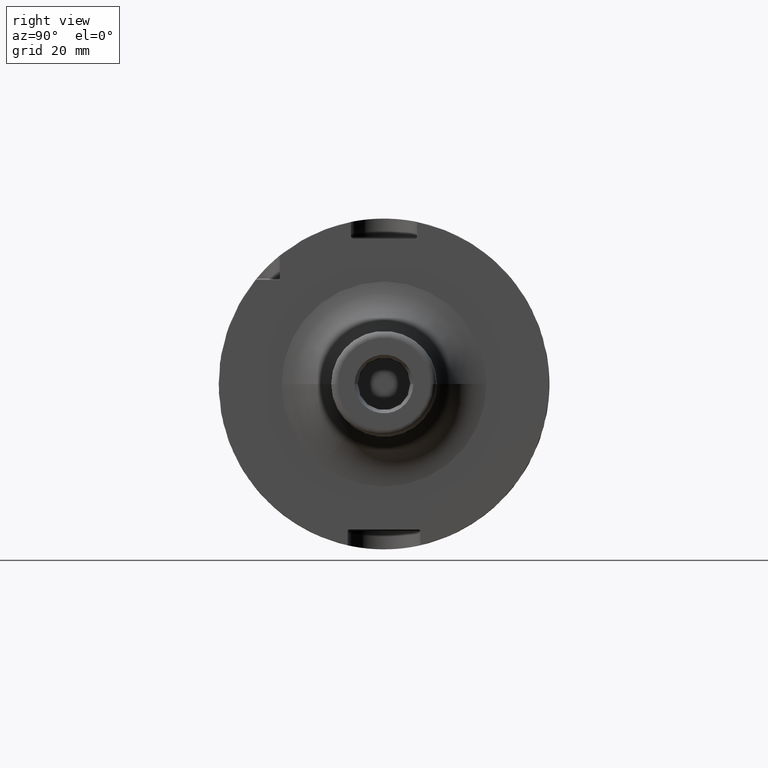
[diagram: clean part render]
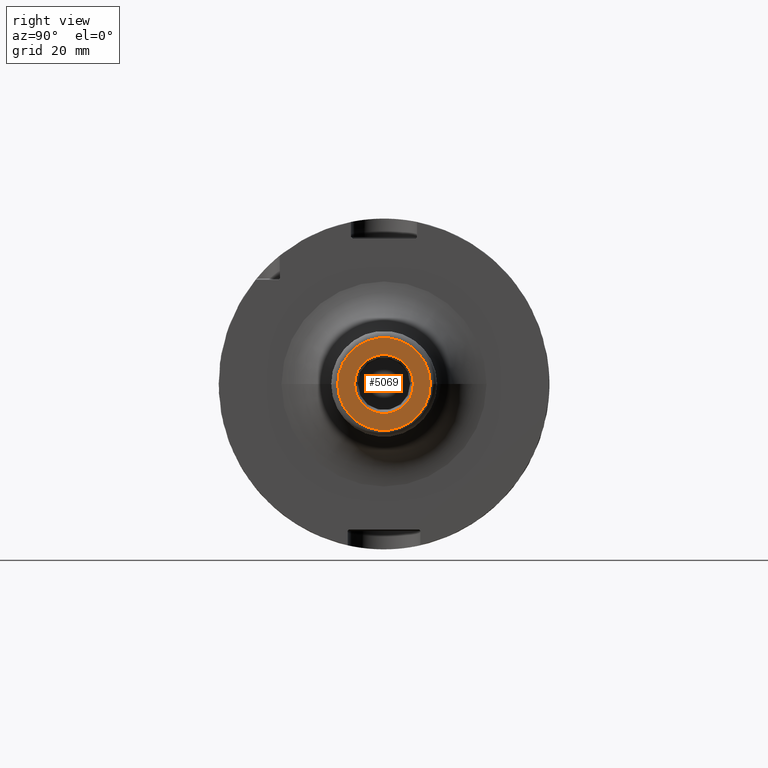
[diagram: same view with one face highlighted and labeled with its STEP entity id]
A machine part, right view. The second image highlights one B-rep face of the part: STEP entity #5069.
In plain terms, the highlighted planar face has unit normal (1, 0, 0).
Its self-contained STEP definition (entity closure, byte-faithful):
#1858=CARTESIAN_POINT('',(1.2E2,0.E0,0.E0));
#1859=DIRECTION('',(-1.E0,0.E0,0.E0));
#1860=DIRECTION('',(0.E0,1.E0,0.E0));
#1861=AXIS2_PLACEMENT_3D('',#1858,#1859,#1860);
#1863=CARTESIAN_POINT('',(1.2E2,0.E0,0.E0));
#1864=DIRECTION('',(-1.E0,0.E0,0.E0));
#1865=DIRECTION('',(0.E0,-1.E0,0.E0));
#1866=AXIS2_PLACEMENT_3D('',#1863,#1864,#1865);
#1868=CARTESIAN_POINT('',(1.2E2,0.E0,0.E0));
#1869=DIRECTION('',(1.E0,0.E0,0.E0));
#1870=DIRECTION('',(0.E0,1.E0,0.E0));
#1871=AXIS2_PLACEMENT_3D('',#1868,#1869,#1870);
#1873=CARTESIAN_POINT('',(1.2E2,0.E0,0.E0));
#1874=DIRECTION('',(1.E0,0.E0,0.E0));
#1875=DIRECTION('',(0.E0,-1.E0,0.E0));
#1876=AXIS2_PLACEMENT_3D('',#1873,#1874,#1875);
#3137=CARTESIAN_POINT('',(1.2E2,1.4E1,0.E0));
#3138=CARTESIAN_POINT('',(1.2E2,-1.4E1,0.E0));
#3139=VERTEX_POINT('',#3137);
#3140=VERTEX_POINT('',#3138);
#3149=CARTESIAN_POINT('',(1.2E2,8.89E0,0.E0));
#3150=CARTESIAN_POINT('',(1.2E2,-8.89E0,0.E0));
#3151=VERTEX_POINT('',#3149);
#3152=VERTEX_POINT('',#3150);
#5054=CARTESIAN_POINT('',(1.2E2,0.E0,0.E0));
#5055=DIRECTION('',(1.E0,0.E0,0.E0));
#5056=DIRECTION('',(0.E0,-1.E0,0.E0));
#5057=AXIS2_PLACEMENT_3D('',#5054,#5055,#5056);
#5058=PLANE('',#5057);
#5059=ORIENTED_EDGE('',*,*,#5036,.T.);
#5060=ORIENTED_EDGE('',*,*,#5021,.T.);
#5061=EDGE_LOOP('',(#5059,#5060));
#5062=FACE_OUTER_BOUND('',#5061,.F.);
#5064=ORIENTED_EDGE('',*,*,#5063,.T.);
#5066=ORIENTED_EDGE('',*,*,#5065,.T.);
#5067=EDGE_LOOP('',(#5064,#5066));
#5068=FACE_BOUND('',#5067,.F.);
#5069=ADVANCED_FACE('',(#5062,#5068),#5058,.T.);
#1862=CIRCLE('',#1861,1.4E1);
#1867=CIRCLE('',#1866,1.4E1);
#1872=CIRCLE('',#1871,8.89E0);
#1877=CIRCLE('',#1876,8.89E0);
#5021=EDGE_CURVE('',#3140,#3139,#1867,.T.);
#5036=EDGE_CURVE('',#3139,#3140,#1862,.T.);
#5063=EDGE_CURVE('',#3151,#3152,#1872,.T.);
#5065=EDGE_CURVE('',#3152,#3151,#1877,.T.);